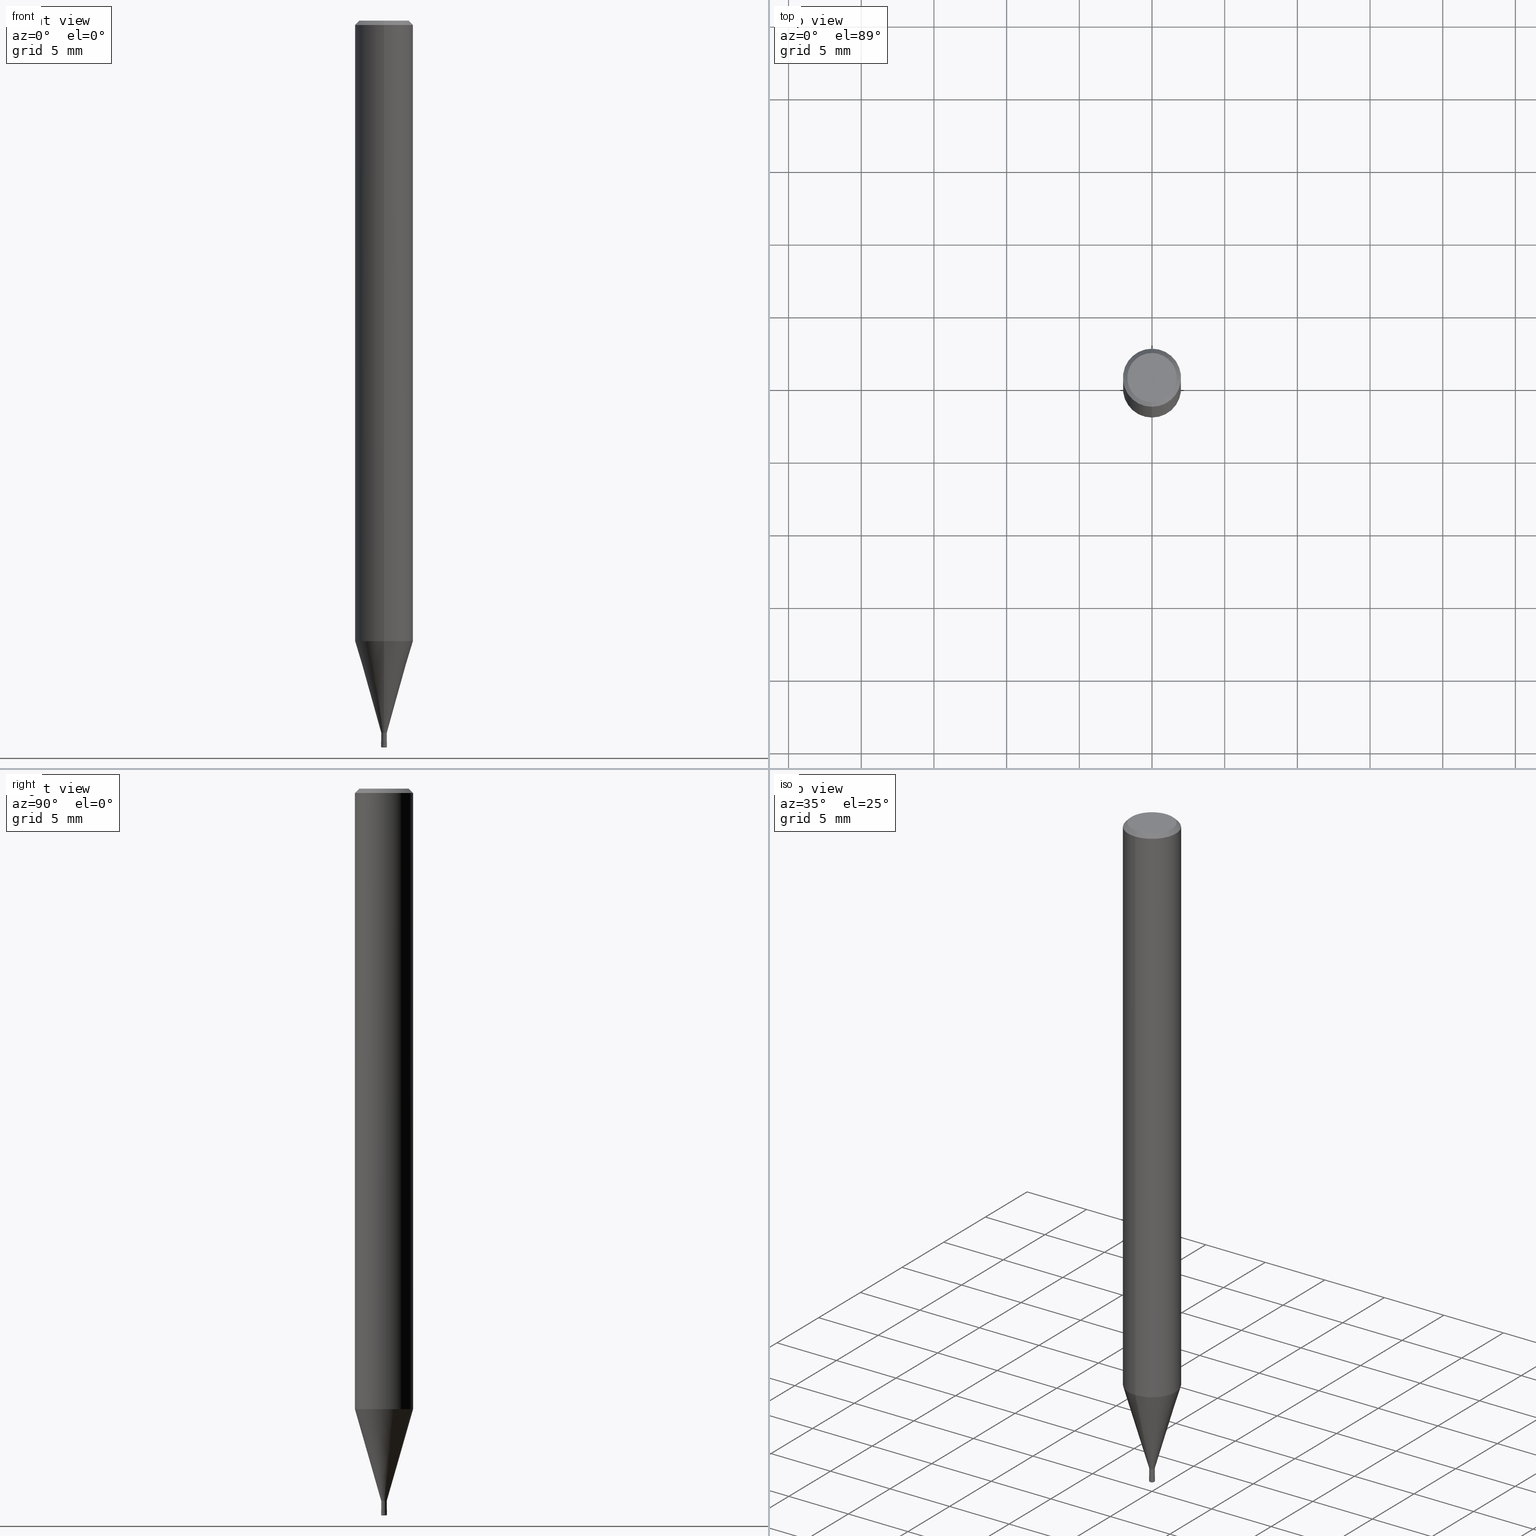
[diagram: canonical four-view strip — front | top / right | iso, engineering-drawing reading convention]
A machine part, canonical four-view strip (front | top / right | iso — engineering-drawing reading convention). The complete STEP part file that produces these views, byte-faithful:
ISO-10303-21;
HEADER;
FILE_DESCRIPTION(('no description'),'unknown implementation level');
FILE_NAME('HLRS2004-005-010E-Huellk.stp','  ',('CIMSOURCE GmbH'),('CADClick - KiM GmbH - www.kimweb.de'),'unknown preprocess','ACIS','unknown authorization');
FILE_SCHEMA(('automotive_design'));
ENDSEC;
DATA;
#1=MECHANICAL_DESIGN_GEOMETRIC_PRESENTATION_REPRESENTATION(' ',(#14,#15,#16,#17,#18,#19,#20,#21,#22,#23,#24,#25,#26,#27,#28,#29,#30,#31,#32,#33,#34,#35,#36,#37,#38,#39,#40,#41,#42,#43,#44,#45,#46,#47,#48,#49,#50,#51,#52,#53,#54,#55,#56,#57,#58,#59,#60,#61,#62,#63,#64,#65,#66,#67,#68,#69,#70,#71,#72,#73,#74,#75,#76,#77,#78,#79,#80),#10);
#2=PRODUCT_DEFINITION_CONTEXT('',#81,'design');
#3=APPLICATION_PROTOCOL_DEFINITION('INTERNATIONAL STANDARD','automotive_design',1994,#81);
#4=PRODUCT_CATEGORY_RELATIONSHIP('NONE','NONE',#82,#83);
#5=SHAPE_DEFINITION_REPRESENTATION(#84,#85);
#6=PRODUCT_DEFINITION_CONTEXT('',#86,'design');
#7=APPLICATION_PROTOCOL_DEFINITION('INTERNATIONAL STANDARD','automotive_design',1994,#86);
#8=PRODUCT_CATEGORY_RELATIONSHIP('NONE','NONE',#87,#88);
#9=SHAPE_DEFINITION_REPRESENTATION(#89,#90);
#10= (GEOMETRIC_REPRESENTATION_CONTEXT(3)GLOBAL_UNCERTAINTY_ASSIGNED_CONTEXT((#93))GLOBAL_UNIT_ASSIGNED_CONTEXT((#95,#96,#97))REPRESENTATION_CONTEXT('NONE','WORKSPACE'));
#14=STYLED_ITEM('',(#99),#100);
#15=STYLED_ITEM('',(#101),#102);
#16=STYLED_ITEM('',(#103),#104);
#17=STYLED_ITEM('',(#105),#106);
#18=STYLED_ITEM('',(#107),#108);
#19=STYLED_ITEM('',(#109),#110);
#20=STYLED_ITEM('',(#111),#112);
#21=STYLED_ITEM('',(#113),#114);
#22=STYLED_ITEM('',(#115),#116);
#23=STYLED_ITEM('',(#117),#118);
#24=STYLED_ITEM('',(#119),#120);
#25=STYLED_ITEM('',(#121),#122);
#26=STYLED_ITEM('',(#123),#124);
#27=STYLED_ITEM('',(#125),#126);
#28=STYLED_ITEM('',(#127),#128);
#29=STYLED_ITEM('',(#129),#130);
#30=STYLED_ITEM('',(#131),#132);
#31=STYLED_ITEM('',(#133),#134);
#32=STYLED_ITEM('',(#135),#136);
#33=STYLED_ITEM('',(#137),#138);
#34=STYLED_ITEM('',(#139),#140);
#35=STYLED_ITEM('',(#141),#142);
#36=STYLED_ITEM('',(#143),#144);
#37=STYLED_ITEM('',(#145),#146);
#38=STYLED_ITEM('',(#147),#148);
#39=STYLED_ITEM('',(#149),#150);
#40=STYLED_ITEM('',(#151),#152);
#41=STYLED_ITEM('',(#153),#154);
#42=STYLED_ITEM('',(#155),#156);
#43=STYLED_ITEM('',(#157),#158);
#44=STYLED_ITEM('',(#159),#160);
#45=STYLED_ITEM('',(#161),#162);
#46=STYLED_ITEM('',(#163),#164);
#47=STYLED_ITEM('',(#165),#166);
#48=STYLED_ITEM('',(#167),#168);
#49=STYLED_ITEM('',(#169),#170);
#50=STYLED_ITEM('',(#171),#172);
#51=STYLED_ITEM('',(#173),#174);
#52=STYLED_ITEM('',(#175),#176);
#53=STYLED_ITEM('',(#177),#178);
#54=STYLED_ITEM('',(#179),#180);
#55=STYLED_ITEM('',(#181),#182);
#56=STYLED_ITEM('',(#183),#184);
#57=STYLED_ITEM('',(#185),#186);
#58=STYLED_ITEM('',(#187),#188);
#59=STYLED_ITEM('',(#189),#190);
#60=STYLED_ITEM('',(#191),#192);
#61=STYLED_ITEM('',(#193),#194);
#62=STYLED_ITEM('',(#195),#196);
#63=STYLED_ITEM('',(#197),#198);
#64=STYLED_ITEM('',(#199),#200);
#65=STYLED_ITEM('',(#201),#202);
#66=STYLED_ITEM('',(#203),#204);
#67=STYLED_ITEM('',(#205),#206);
#68=STYLED_ITEM('',(#207),#208);
#69=STYLED_ITEM('',(#209),#210);
#70=STYLED_ITEM('',(#211),#212);
#71=STYLED_ITEM('',(#213),#214);
#72=STYLED_ITEM('',(#215),#216);
#73=STYLED_ITEM('',(#217),#218);
#74=STYLED_ITEM('',(#219),#220);
#75=STYLED_ITEM('',(#221),#222);
#76=STYLED_ITEM('',(#223),#224);
#77=STYLED_ITEM('',(#225),#226);
#78=STYLED_ITEM('',(#227),#228);
#79=STYLED_ITEM('',(#229),#230);
#80=STYLED_ITEM('',(#231),#232);
#81=APPLICATION_CONTEXT(' ');
#82=PRODUCT_CATEGORY('part','NONE');
#83=PRODUCT_RELATED_PRODUCT_CATEGORY('detail',' ',(#233));
#84=PRODUCT_DEFINITION_SHAPE('NONE','NONE',#234);
#85=ADVANCED_BREP_SHAPE_REPRESENTATION('1',(#212,#235),#10);
#86=APPLICATION_CONTEXT(' ');
#87=PRODUCT_CATEGORY('part','NONE');
#88=PRODUCT_RELATED_PRODUCT_CATEGORY('detail',' ',(#236));
#89=PRODUCT_DEFINITION_SHAPE('NONE','NONE',#237);
#90=ADVANCED_BREP_SHAPE_REPRESENTATION('2',(#204,#238),#10);
#93=UNCERTAINTY_MEASURE_WITH_UNIT(LENGTH_MEASURE(1.0E-006),#95,'','');
#95= (CONVERSION_BASED_UNIT('MILLIMETRE',#241)LENGTH_UNIT()NAMED_UNIT(#244));
#96= (NAMED_UNIT(#246)PLANE_ANGLE_UNIT()SI_UNIT($,.RADIAN.));
#97= (NAMED_UNIT(#246)SOLID_ANGLE_UNIT()SI_UNIT($,.STERADIAN.));
#99=PRESENTATION_STYLE_ASSIGNMENT((#252));
#100=VERTEX_POINT('',#253);
#101=PRESENTATION_STYLE_ASSIGNMENT((#254));
#102=VERTEX_POINT('',#255);
#103=PRESENTATION_STYLE_ASSIGNMENT((#256));
#104=EDGE_CURVE('',#138,#226,#257,.T.);
#105=PRESENTATION_STYLE_ASSIGNMENT((#258));
#106=VERTEX_POINT('',#259);
#107=PRESENTATION_STYLE_ASSIGNMENT((#260));
#108=VERTEX_POINT('',#261);
#109=PRESENTATION_STYLE_ASSIGNMENT((#262));
#110=VERTEX_POINT('',#263);
#111=PRESENTATION_STYLE_ASSIGNMENT((#264));
#112=EDGE_CURVE('',#108,#100,#265,.T.);
#113=PRESENTATION_STYLE_ASSIGNMENT((#266));
#114=ADVANCED_FACE('',(#267),#268,.T.);
#115=PRESENTATION_STYLE_ASSIGNMENT((#269));
#116=ADVANCED_FACE('',(#270),#271,.T.);
#117=PRESENTATION_STYLE_ASSIGNMENT((#272));
#118=EDGE_CURVE('',#178,#206,#273,.T.);
#119=PRESENTATION_STYLE_ASSIGNMENT((#274));
#120=EDGE_CURVE('',#128,#146,#275,.T.);
#121=PRESENTATION_STYLE_ASSIGNMENT((#276));
#122=EDGE_CURVE('',#226,#146,#277,.T.);
#123=PRESENTATION_STYLE_ASSIGNMENT((#278));
#124=ADVANCED_FACE('',(#279),#280,.T.);
#125=PRESENTATION_STYLE_ASSIGNMENT((#281));
#126=ADVANCED_FACE('',(#282),#283,.T.);
#127=PRESENTATION_STYLE_ASSIGNMENT((#284));
#128=VERTEX_POINT('',#285);
#129=PRESENTATION_STYLE_ASSIGNMENT((#286));
#130=VERTEX_POINT('',#287);
#131=PRESENTATION_STYLE_ASSIGNMENT((#288));
#132=ADVANCED_FACE('',(#289),#290,.T.);
#133=PRESENTATION_STYLE_ASSIGNMENT((#291));
#134=ADVANCED_FACE('',(#292),#293,.T.);
#135=PRESENTATION_STYLE_ASSIGNMENT((#294));
#136=EDGE_CURVE('',#206,#178,#295,.T.);
#137=PRESENTATION_STYLE_ASSIGNMENT((#296));
#138=VERTEX_POINT('',#297);
#139=PRESENTATION_STYLE_ASSIGNMENT((#298));
#140=EDGE_CURVE('',#100,#194,#299,.T.);
#141=PRESENTATION_STYLE_ASSIGNMENT((#300));
#142=ADVANCED_FACE('',(#301),#302,.T.);
#143=PRESENTATION_STYLE_ASSIGNMENT((#303));
#144=EDGE_CURVE('',#130,#100,#304,.T.);
#145=PRESENTATION_STYLE_ASSIGNMENT((#305));
#146=VERTEX_POINT('',#306);
#147=PRESENTATION_STYLE_ASSIGNMENT((#307));
#148=EDGE_CURVE('',#100,#108,#308,.T.);
#149=PRESENTATION_STYLE_ASSIGNMENT((#309));
#150=EDGE_CURVE('',#138,#192,#310,.T.);
#151=PRESENTATION_STYLE_ASSIGNMENT((#311));
#152=VERTEX_POINT('',#312);
#153=PRESENTATION_STYLE_ASSIGNMENT((#313));
#154=EDGE_CURVE('',#152,#106,#314,.T.);
#155=PRESENTATION_STYLE_ASSIGNMENT((#315));
#156=EDGE_CURVE('',#128,#190,#316,.T.);
#157=PRESENTATION_STYLE_ASSIGNMENT((#317));
#158=ADVANCED_FACE('',(#318),#319,.T.);
#159=PRESENTATION_STYLE_ASSIGNMENT((#320));
#160=EDGE_CURVE('',#110,#176,#321,.T.);
#161=PRESENTATION_STYLE_ASSIGNMENT((#322));
#162=ADVANCED_FACE('',(#323),#324,.T.);
#163=PRESENTATION_STYLE_ASSIGNMENT((#325));
#164=EDGE_CURVE('',#130,#102,#326,.T.);
#165=PRESENTATION_STYLE_ASSIGNMENT((#327));
#166=EDGE_CURVE('',#110,#106,#328,.T.);
#167=PRESENTATION_STYLE_ASSIGNMENT((#329));
#168=EDGE_CURVE('',#108,#102,#330,.T.);
#169=PRESENTATION_STYLE_ASSIGNMENT((#331));
#170=ADVANCED_FACE('',(#332),#333,.T.);
#171=PRESENTATION_STYLE_ASSIGNMENT((#334));
#172=ADVANCED_FACE('',(#335),#336,.T.);
#173=PRESENTATION_STYLE_ASSIGNMENT((#337));
#174=EDGE_CURVE('',#176,#110,#338,.T.);
#175=PRESENTATION_STYLE_ASSIGNMENT((#339));
#176=VERTEX_POINT('',#340);
#177=PRESENTATION_STYLE_ASSIGNMENT((#341));
#178=VERTEX_POINT('',#342);
#179=PRESENTATION_STYLE_ASSIGNMENT((#343));
#180=EDGE_CURVE('',#194,#216,#344,.T.);
#181=PRESENTATION_STYLE_ASSIGNMENT((#345));
#182=ADVANCED_FACE('',(#346,#347),#348,.T.);
#183=PRESENTATION_STYLE_ASSIGNMENT((#349));
#184=EDGE_CURVE('',#206,#106,#350,.T.);
#185=PRESENTATION_STYLE_ASSIGNMENT((#351));
#186=EDGE_CURVE('',#190,#192,#352,.T.);
#187=PRESENTATION_STYLE_ASSIGNMENT((#353));
#188=ADVANCED_FACE('',(#354),#355,.T.);
#189=PRESENTATION_STYLE_ASSIGNMENT((#356));
#190=VERTEX_POINT('',#357);
#191=PRESENTATION_STYLE_ASSIGNMENT((#358));
#192=VERTEX_POINT('',#359);
#193=PRESENTATION_STYLE_ASSIGNMENT((#360));
#194=VERTEX_POINT('',#361);
#195=PRESENTATION_STYLE_ASSIGNMENT((#362));
#196=EDGE_CURVE('',#102,#130,#363,.T.);
#197=PRESENTATION_STYLE_ASSIGNMENT((#364));
#198=ADVANCED_FACE('',(#365),#366,.T.);
#199=PRESENTATION_STYLE_ASSIGNMENT((#367));
#200=EDGE_CURVE('',#152,#178,#368,.T.);
#201=PRESENTATION_STYLE_ASSIGNMENT((#369));
#202=EDGE_CURVE('',#226,#190,#370,.T.);
#203=PRESENTATION_STYLE_ASSIGNMENT((#371));
#204=MANIFOLD_SOLID_BREP('2',#372);
#205=PRESENTATION_STYLE_ASSIGNMENT((#373));
#206=VERTEX_POINT('',#374);
#207=PRESENTATION_STYLE_ASSIGNMENT((#375));
#208=EDGE_CURVE('',#106,#152,#376,.T.);
#209=PRESENTATION_STYLE_ASSIGNMENT((#377));
#210=ADVANCED_FACE('',(#378),#379,.T.);
#211=PRESENTATION_STYLE_ASSIGNMENT((#380));
#212=MANIFOLD_SOLID_BREP('1',#381);
#213=PRESENTATION_STYLE_ASSIGNMENT((#382));
#214=EDGE_CURVE('',#216,#194,#383,.T.);
#215=PRESENTATION_STYLE_ASSIGNMENT((#384));
#216=VERTEX_POINT('',#385);
#217=PRESENTATION_STYLE_ASSIGNMENT((#386));
#218=ADVANCED_FACE('',(#387),#388,.T.);
#219=PRESENTATION_STYLE_ASSIGNMENT((#389));
#220=EDGE_CURVE('',#152,#176,#390,.T.);
#221=PRESENTATION_STYLE_ASSIGNMENT((#391));
#222=ADVANCED_FACE('',(#392),#393,.T.);
#223=PRESENTATION_STYLE_ASSIGNMENT((#394));
#224=EDGE_CURVE('',#190,#226,#395,.T.);
#225=PRESENTATION_STYLE_ASSIGNMENT((#396));
#226=VERTEX_POINT('',#397);
#227=PRESENTATION_STYLE_ASSIGNMENT((#398));
#228=EDGE_CURVE('',#216,#108,#399,.T.);
#229=PRESENTATION_STYLE_ASSIGNMENT((#400));
#230=EDGE_CURVE('',#192,#138,#401,.T.);
#231=PRESENTATION_STYLE_ASSIGNMENT((#402));
#232=EDGE_CURVE('',#146,#128,#403,.T.);
#233=PRODUCT('1','1','PART-1-DESC',(#404));
#234=PRODUCT_DEFINITION('NONE','NONE',#405,#2);
#235=AXIS2_PLACEMENT_3D('',#406,#407,#408);
#236=PRODUCT('2','2','PART-2-DESC',(#409));
#237=PRODUCT_DEFINITION('NONE','NONE',#410,#6);
#238=AXIS2_PLACEMENT_3D('',#411,#412,#413);
#241=LENGTH_MEASURE_WITH_UNIT(LENGTH_MEASURE(1.0),#414);
#244=DIMENSIONAL_EXPONENTS(1.0,0.0,0.0,0.0,0.0,0.0,0.0);
#246=DIMENSIONAL_EXPONENTS(0.0,0.0,0.0,0.0,0.0,0.0,0.0);
#252=POINT_STYLE(' ',#415,POSITIVE_LENGTH_MEASURE(1.0E-006),#416);
#253=CARTESIAN_POINT('',(0.0,2.0,-0.299999999999997));
#254=POINT_STYLE(' ',#417,POSITIVE_LENGTH_MEASURE(1.0E-006),#418);
#255=CARTESIAN_POINT('',(2.08183080149804E-016,-1.7,0.0));
#256=CURVE_STYLE('',#419,POSITIVE_LENGTH_MEASURE(1.0E-006),#420);
#257=LINE('',#421,#422);
#258=POINT_STYLE(' ',#423,POSITIVE_LENGTH_MEASURE(1.0E-006),#424);
#259=CARTESIAN_POINT('',(0.0,0.2,-49.95));
#260=POINT_STYLE(' ',#425,POSITIVE_LENGTH_MEASURE(1.0E-006),#426);
#261=CARTESIAN_POINT('',(2.44921270764475E-016,-2.0,-0.299999999999997));
#262=POINT_STYLE(' ',#427,POSITIVE_LENGTH_MEASURE(1.0E-006),#428);
#263=CARTESIAN_POINT('',(0.0,0.15,-50.0));
#264=CURVE_STYLE('',#429,POSITIVE_LENGTH_MEASURE(1.0E-006),#430);
#265=CIRCLE('',#431,2.0);
#266=SURFACE_STYLE_USAGE(.BOTH.,#432);
#267=FACE_OUTER_BOUND('',#433,.T.);
#268=CYLINDRICAL_SURFACE('',#434,2.0);
#269=SURFACE_STYLE_USAGE(.BOTH.,#435);
#270=FACE_OUTER_BOUND('',#436,.T.);
#271=CONICAL_SURFACE('',#437,1.09495,0.279261921280279);
#272=CURVE_STYLE('',#438,POSITIVE_LENGTH_MEASURE(1.0E-006),#439);
#273=CIRCLE('',#440,0.1999);
#274=CURVE_STYLE('',#441,POSITIVE_LENGTH_MEASURE(1.0E-006),#442);
#275=CIRCLE('',#443,0.18995);
#276=CURVE_STYLE('',#444,POSITIVE_LENGTH_MEASURE(1.0E-006),#445);
#277=LINE('',#446,#447);
#278=SURFACE_STYLE_USAGE(.BOTH.,#448);
#279=FACE_OUTER_BOUND('',#449,.T.);
#280=PLANE('',#450);
#281=SURFACE_STYLE_USAGE(.BOTH.,#451);
#282=FACE_OUTER_BOUND('',#452,.T.);
#283=PLANE('',#453);
#284=POINT_STYLE(' ',#454,POSITIVE_LENGTH_MEASURE(1.0E-006),#455);
#285=CARTESIAN_POINT('',(2.32613976908561E-017,-0.18995,-49.6));
#286=POINT_STYLE(' ',#456,POSITIVE_LENGTH_MEASURE(1.0E-006),#457);
#287=CARTESIAN_POINT('',(0.0,1.7,0.0));
#288=SURFACE_STYLE_USAGE(.BOTH.,#458);
#289=FACE_OUTER_BOUND('',#459,.T.);
#290=CYLINDRICAL_SURFACE('',#460,0.18995);
#291=SURFACE_STYLE_USAGE(.BOTH.,#461);
#292=FACE_OUTER_BOUND('',#462,.T.);
#293=CONICAL_SURFACE('',#463,1.85,0.785398163397453);
#294=CURVE_STYLE('',#464,POSITIVE_LENGTH_MEASURE(1.0E-006),#465);
#295=CIRCLE('',#466,0.1999);
#296=POINT_STYLE(' ',#467,POSITIVE_LENGTH_MEASURE(1.0E-006),#468);
#297=CARTESIAN_POINT('',(0.0,1.99995,-42.688));
#298=CURVE_STYLE('',#469,POSITIVE_LENGTH_MEASURE(1.0E-006),#470);
#299=LINE('',#471,#472);
#300=SURFACE_STYLE_USAGE(.BOTH.,#473);
#301=FACE_OUTER_BOUND('',#474,.T.);
#302=CONICAL_SURFACE('',#475,1.09495,0.279261921280279);
#303=CURVE_STYLE('',#476,POSITIVE_LENGTH_MEASURE(1.0E-006),#477);
#304=LINE('',#478,#479);
#305=POINT_STYLE(' ',#480,POSITIVE_LENGTH_MEASURE(1.0E-006),#481);
#306=CARTESIAN_POINT('',(0.0,0.18995,-49.6));
#307=CURVE_STYLE('',#482,POSITIVE_LENGTH_MEASURE(1.0E-006),#483);
#308=CIRCLE('',#484,2.0);
#309=CURVE_STYLE('',#485,POSITIVE_LENGTH_MEASURE(1.0E-006),#486);
#310=CIRCLE('',#487,1.99995);
#311=POINT_STYLE(' ',#488,POSITIVE_LENGTH_MEASURE(1.0E-006),#489);
#312=CARTESIAN_POINT('',(2.44921270764475E-017,-0.2,-49.95));
#313=CURVE_STYLE('',#490,POSITIVE_LENGTH_MEASURE(1.0E-006),#491);
#314=CIRCLE('',#492,0.2);
#315=CURVE_STYLE('',#493,POSITIVE_LENGTH_MEASURE(1.0E-006),#494);
#316=LINE('',#495,#496);
#317=SURFACE_STYLE_USAGE(.BOTH.,#497);
#318=FACE_OUTER_BOUND('',#498,.T.);
#319=CONICAL_SURFACE('',#499,0.19995,0.000285714277939796);
#320=CURVE_STYLE('',#500,POSITIVE_LENGTH_MEASURE(1.0E-006),#501);
#321=CIRCLE('',#502,0.15);
#322=SURFACE_STYLE_USAGE(.BOTH.,#503);
#323=FACE_OUTER_BOUND('',#504,.T.);
#324=PLANE('',#505);
#325=CURVE_STYLE('',#506,POSITIVE_LENGTH_MEASURE(1.0E-006),#507);
#326=CIRCLE('',#508,1.7);
#327=CURVE_STYLE('',#509,POSITIVE_LENGTH_MEASURE(1.0E-006),#510);
#328=CIRCLE('',#511,0.0499999999999998);
#329=CURVE_STYLE('',#512,POSITIVE_LENGTH_MEASURE(1.0E-006),#513);
#330=LINE('',#514,#515);
#331=SURFACE_STYLE_USAGE(.BOTH.,#516);
#332=FACE_OUTER_BOUND('',#517,.T.);
#333=TOROIDAL_SURFACE('',#518,0.15,0.0499999999999998);
#334=SURFACE_STYLE_USAGE(.BOTH.,#519);
#335=FACE_OUTER_BOUND('',#520,.T.);
#336=CYLINDRICAL_SURFACE('',#521,0.18995);
#337=CURVE_STYLE('',#522,POSITIVE_LENGTH_MEASURE(1.0E-006),#523);
#338=CIRCLE('',#524,0.15);
#339=POINT_STYLE(' ',#525,POSITIVE_LENGTH_MEASURE(1.0E-006),#526);
#340=CARTESIAN_POINT('',(1.83690953073357E-017,-0.15,-50.0));
#341=POINT_STYLE(' ',#527,POSITIVE_LENGTH_MEASURE(1.0E-006),#528);
#342=CARTESIAN_POINT('',(2.44798810129093E-017,-0.1999,-49.6));
#343=CURVE_STYLE('',#529,POSITIVE_LENGTH_MEASURE(1.0E-006),#530);
#344=CIRCLE('',#531,2.0);
#345=SURFACE_STYLE_USAGE(.BOTH.,#532);
#346=FACE_OUTER_BOUND('',#533,.T.);
#347=FACE_BOUND('',#534,.T.);
#348=PLANE('',#535);
#349=CURVE_STYLE('',#536,POSITIVE_LENGTH_MEASURE(1.0E-006),#537);
#350=LINE('',#538,#539);
#351=CURVE_STYLE('',#540,POSITIVE_LENGTH_MEASURE(1.0E-006),#541);
#352=LINE('',#542,#543);
#353=SURFACE_STYLE_USAGE(.BOTH.,#544);
#354=FACE_OUTER_BOUND('',#545,.T.);
#355=CONICAL_SURFACE('',#546,1.85,0.785398163397453);
#356=POINT_STYLE(' ',#547,POSITIVE_LENGTH_MEASURE(1.0E-006),#548);
#357=CARTESIAN_POINT('',(2.3261397690856E-017,-0.18995,-49.0));
#358=POINT_STYLE(' ',#549,POSITIVE_LENGTH_MEASURE(1.0E-006),#550);
#359=CARTESIAN_POINT('',(2.44915147732706E-016,-1.99995,-42.688));
#360=POINT_STYLE(' ',#551,POSITIVE_LENGTH_MEASURE(1.0E-006),#552);
#361=CARTESIAN_POINT('',(0.0,2.0,-42.688));
#362=CURVE_STYLE('',#553,POSITIVE_LENGTH_MEASURE(1.0E-006),#554);
#363=CIRCLE('',#555,1.7);
#364=SURFACE_STYLE_USAGE(.BOTH.,#556);
#365=FACE_OUTER_BOUND('',#557,.T.);
#366=PLANE('',#558);
#367=CURVE_STYLE('',#559,POSITIVE_LENGTH_MEASURE(1.0E-006),#560);
#368=LINE('',#561,#562);
#369=CURVE_STYLE('',#563,POSITIVE_LENGTH_MEASURE(1.0E-006),#564);
#370=CIRCLE('',#565,0.18995);
#371=SURFACE_STYLE_USAGE(.BOTH.,#566);
#372=CLOSED_SHELL('',(#222,#158,#162,#210,#170,#124));
#373=POINT_STYLE(' ',#567,POSITIVE_LENGTH_MEASURE(1.0E-006),#568);
#374=CARTESIAN_POINT('',(0.0,0.1999,-49.6));
#375=CURVE_STYLE('',#569,POSITIVE_LENGTH_MEASURE(1.0E-006),#570);
#376=CIRCLE('',#571,0.2);
#377=SURFACE_STYLE_USAGE(.BOTH.,#572);
#378=FACE_OUTER_BOUND('',#573,.T.);
#379=CONICAL_SURFACE('',#574,0.19995,0.000285714277939796);
#380=SURFACE_STYLE_USAGE(.BOTH.,#575);
#381=CLOSED_SHELL('',(#172,#116,#114,#134,#182,#198,#188,#218,#142,#132,#126));
#382=CURVE_STYLE('',#576,POSITIVE_LENGTH_MEASURE(1.0E-006),#577);
#383=CIRCLE('',#578,2.0);
#384=POINT_STYLE(' ',#579,POSITIVE_LENGTH_MEASURE(1.0E-006),#580);
#385=CARTESIAN_POINT('',(2.44921270764475E-016,-2.0,-42.688));
#386=SURFACE_STYLE_USAGE(.BOTH.,#581);
#387=FACE_OUTER_BOUND('',#582,.T.);
#388=CYLINDRICAL_SURFACE('',#583,2.0);
#389=CURVE_STYLE('',#584,POSITIVE_LENGTH_MEASURE(1.0E-006),#585);
#390=CIRCLE('',#586,0.0499999999999998);
#391=SURFACE_STYLE_USAGE(.BOTH.,#587);
#392=FACE_OUTER_BOUND('',#588,.T.);
#393=TOROIDAL_SURFACE('',#589,0.15,0.0499999999999998);
#394=CURVE_STYLE('',#590,POSITIVE_LENGTH_MEASURE(1.0E-006),#591);
#395=CIRCLE('',#592,0.18995);
#396=POINT_STYLE(' ',#593,POSITIVE_LENGTH_MEASURE(1.0E-006),#594);
#397=CARTESIAN_POINT('',(0.0,0.18995,-49.0));
#398=CURVE_STYLE('',#595,POSITIVE_LENGTH_MEASURE(1.0E-006),#596);
#399=LINE('',#597,#598);
#400=CURVE_STYLE('',#599,POSITIVE_LENGTH_MEASURE(1.0E-006),#600);
#401=CIRCLE('',#601,1.99995);
#402=CURVE_STYLE('',#602,POSITIVE_LENGTH_MEASURE(1.0E-006),#603);
#403=CIRCLE('',#604,0.18995);
#404=PRODUCT_CONTEXT('',#81,'mechanical');
#405=PRODUCT_DEFINITION_FORMATION_WITH_SPECIFIED_SOURCE(' ','NONE',#233,.NOT_KNOWN.);
#406=CARTESIAN_POINT('',(0.0,0.0,0.0));
#407=DIRECTION('',(0.0,0.0,1.0));
#408=DIRECTION('',(1.0,0.0,0.0));
#409=PRODUCT_CONTEXT('',#86,'mechanical');
#410=PRODUCT_DEFINITION_FORMATION_WITH_SPECIFIED_SOURCE(' ','NONE',#236,.NOT_KNOWN.);
#411=CARTESIAN_POINT('',(0.0,0.0,0.0));
#412=DIRECTION('',(0.0,0.0,1.0));
#413=DIRECTION('',(1.0,0.0,0.0));
#414= (NAMED_UNIT(#244)LENGTH_UNIT()SI_UNIT(.MILLI.,.METRE.));
#415=PRE_DEFINED_MARKER('');
#416=COLOUR_RGB('',0.498039215803146,0.498039215803146,0.498039215803146);
#417=PRE_DEFINED_MARKER('');
#418=COLOUR_RGB('',0.498039215803146,0.498039215803146,0.498039215803146);
#419=DRAUGHTING_PRE_DEFINED_CURVE_FONT('continuous');
#420=COLOUR_RGB('',0.498039215803146,0.498039215803146,0.498039215803146);
#421=CARTESIAN_POINT('',(-1.34088272711781E-016,1.09495,-45.844));
#422=VECTOR('',#606,1.0);
#423=PRE_DEFINED_MARKER('');
#424=COLOUR_RGB('',0.800000011920929,0.800000011920929,0.800000011920929);
#425=PRE_DEFINED_MARKER('');
#426=COLOUR_RGB('',0.498039215803146,0.498039215803146,0.498039215803146);
#427=PRE_DEFINED_MARKER('');
#428=COLOUR_RGB('',0.800000011920929,0.800000011920929,0.800000011920929);
#429=DRAUGHTING_PRE_DEFINED_CURVE_FONT('continuous');
#430=COLOUR_RGB('',0.498039215803146,0.498039215803146,0.498039215803146);
#431=AXIS2_PLACEMENT_3D('',#607,#608,#609);
#432=SURFACE_SIDE_STYLE('',(#610));
#433=EDGE_LOOP('',(#611,#612,#613,#614));
#434=AXIS2_PLACEMENT_3D('',#615,#616,#617);
#435=SURFACE_SIDE_STYLE('',(#618));
#436=EDGE_LOOP('',(#619,#620,#621,#622));
#437=AXIS2_PLACEMENT_3D('',#623,#624,#625);
#438=DRAUGHTING_PRE_DEFINED_CURVE_FONT('continuous');
#439=COLOUR_RGB('',0.800000011920929,0.800000011920929,0.800000011920929);
#440=AXIS2_PLACEMENT_3D('',#626,#627,#628);
#441=DRAUGHTING_PRE_DEFINED_CURVE_FONT('continuous');
#442=COLOUR_RGB('',0.498039215803146,0.498039215803146,0.498039215803146);
#443=AXIS2_PLACEMENT_3D('',#629,#630,#631);
#444=DRAUGHTING_PRE_DEFINED_CURVE_FONT('continuous');
#445=COLOUR_RGB('',0.498039215803146,0.498039215803146,0.498039215803146);
#446=CARTESIAN_POINT('',(-2.32613976908561E-017,0.18995,-49.3));
#447=VECTOR('',#632,1.0);
#448=SURFACE_SIDE_STYLE('',(#633));
#449=EDGE_LOOP('',(#634,#635));
#450=AXIS2_PLACEMENT_3D('',#636,#637,#638);
#451=SURFACE_SIDE_STYLE('',(#639));
#452=EDGE_LOOP('',(#640,#641));
#453=AXIS2_PLACEMENT_3D('',#642,#643,#644);
#454=PRE_DEFINED_MARKER('');
#455=COLOUR_RGB('',0.498039215803146,0.498039215803146,0.498039215803146);
#456=PRE_DEFINED_MARKER('');
#457=COLOUR_RGB('',0.498039215803146,0.498039215803146,0.498039215803146);
#458=SURFACE_SIDE_STYLE('',(#645));
#459=EDGE_LOOP('',(#646,#647,#648,#649));
#460=AXIS2_PLACEMENT_3D('',#650,#651,#652);
#461=SURFACE_SIDE_STYLE('',(#653));
#462=EDGE_LOOP('',(#654,#655,#656,#657));
#463=AXIS2_PLACEMENT_3D('',#658,#659,#660);
#464=DRAUGHTING_PRE_DEFINED_CURVE_FONT('continuous');
#465=COLOUR_RGB('',0.800000011920929,0.800000011920929,0.800000011920929);
#466=AXIS2_PLACEMENT_3D('',#661,#662,#663);
#467=PRE_DEFINED_MARKER('');
#468=COLOUR_RGB('',0.498039215803146,0.498039215803146,0.498039215803146);
#469=DRAUGHTING_PRE_DEFINED_CURVE_FONT('continuous');
#470=COLOUR_RGB('',0.498039215803146,0.498039215803146,0.498039215803146);
#471=CARTESIAN_POINT('',(-2.44921270764475E-016,2.0,-21.494));
#472=VECTOR('',#664,1.0);
#473=SURFACE_SIDE_STYLE('',(#665));
#474=EDGE_LOOP('',(#666,#667,#668,#669));
#475=AXIS2_PLACEMENT_3D('',#670,#671,#672);
#476=DRAUGHTING_PRE_DEFINED_CURVE_FONT('continuous');
#477=COLOUR_RGB('',0.498039215803146,0.498039215803146,0.498039215803146);
#478=CARTESIAN_POINT('',(-2.2655217545714E-016,1.85,-0.149999999999999));
#479=VECTOR('',#673,1.0);
#480=PRE_DEFINED_MARKER('');
#481=COLOUR_RGB('',0.498039215803146,0.498039215803146,0.498039215803146);
#482=DRAUGHTING_PRE_DEFINED_CURVE_FONT('continuous');
#483=COLOUR_RGB('',0.498039215803146,0.498039215803146,0.498039215803146);
#484=AXIS2_PLACEMENT_3D('',#674,#675,#676);
#485=DRAUGHTING_PRE_DEFINED_CURVE_FONT('continuous');
#486=COLOUR_RGB('',0.498039215803146,0.498039215803146,0.498039215803146);
#487=AXIS2_PLACEMENT_3D('',#677,#678,#679);
#488=PRE_DEFINED_MARKER('');
#489=COLOUR_RGB('',0.800000011920929,0.800000011920929,0.800000011920929);
#490=DRAUGHTING_PRE_DEFINED_CURVE_FONT('continuous');
#491=COLOUR_RGB('',0.800000011920929,0.800000011920929,0.800000011920929);
#492=AXIS2_PLACEMENT_3D('',#680,#681,#682);
#493=DRAUGHTING_PRE_DEFINED_CURVE_FONT('continuous');
#494=COLOUR_RGB('',0.498039215803146,0.498039215803146,0.498039215803146);
#495=CARTESIAN_POINT('',(2.32613976908561E-017,-0.18995,-49.3));
#496=VECTOR('',#683,1.0);
#497=SURFACE_SIDE_STYLE('',(#684));
#498=EDGE_LOOP('',(#685,#686,#687,#688));
#499=AXIS2_PLACEMENT_3D('',#689,#690,#691);
#500=DRAUGHTING_PRE_DEFINED_CURVE_FONT('continuous');
#501=COLOUR_RGB('',0.800000011920929,0.800000011920929,0.800000011920929);
#502=AXIS2_PLACEMENT_3D('',#692,#693,#694);
#503=SURFACE_SIDE_STYLE('',(#695));
#504=EDGE_LOOP('',(#696,#697));
#505=AXIS2_PLACEMENT_3D('',#698,#699,#700);
#506=DRAUGHTING_PRE_DEFINED_CURVE_FONT('continuous');
#507=COLOUR_RGB('',0.498039215803146,0.498039215803146,0.498039215803146);
#508=AXIS2_PLACEMENT_3D('',#701,#702,#703);
#509=DRAUGHTING_PRE_DEFINED_CURVE_FONT('continuous');
#510=COLOUR_RGB('',0.800000011920929,0.800000011920929,0.800000011920929);
#511=AXIS2_PLACEMENT_3D('',#704,#705,#706);
#512=DRAUGHTING_PRE_DEFINED_CURVE_FONT('continuous');
#513=COLOUR_RGB('',0.498039215803146,0.498039215803146,0.498039215803146);
#514=CARTESIAN_POINT('',(2.2655217545714E-016,-1.85,-0.149999999999999));
#515=VECTOR('',#707,1.0);
#516=SURFACE_SIDE_STYLE('',(#708));
#517=EDGE_LOOP('',(#709,#710,#711,#712));
#518=AXIS2_PLACEMENT_3D('',#713,#714,#715);
#519=SURFACE_SIDE_STYLE('',(#716));
#520=EDGE_LOOP('',(#717,#718,#719,#720));
#521=AXIS2_PLACEMENT_3D('',#721,#722,#723);
#522=DRAUGHTING_PRE_DEFINED_CURVE_FONT('continuous');
#523=COLOUR_RGB('',0.800000011920929,0.800000011920929,0.800000011920929);
#524=AXIS2_PLACEMENT_3D('',#724,#725,#726);
#525=PRE_DEFINED_MARKER('');
#526=COLOUR_RGB('',0.800000011920929,0.800000011920929,0.800000011920929);
#527=PRE_DEFINED_MARKER('');
#528=COLOUR_RGB('',0.800000011920929,0.800000011920929,0.800000011920929);
#529=DRAUGHTING_PRE_DEFINED_CURVE_FONT('continuous');
#530=COLOUR_RGB('',0.498039215803146,0.498039215803146,0.498039215803146);
#531=AXIS2_PLACEMENT_3D('',#727,#728,#729);
#532=SURFACE_SIDE_STYLE('',(#730));
#533=EDGE_LOOP('',(#731,#732));
#534=EDGE_LOOP('',(#733,#734));
#535=AXIS2_PLACEMENT_3D('',#735,#736,#737);
#536=DRAUGHTING_PRE_DEFINED_CURVE_FONT('continuous');
#537=COLOUR_RGB('',0.800000011920929,0.800000011920929,0.800000011920929);
#538=CARTESIAN_POINT('',(-2.44860040446784E-017,0.19995,-49.775));
#539=VECTOR('',#738,1.0);
#540=DRAUGHTING_PRE_DEFINED_CURVE_FONT('continuous');
#541=COLOUR_RGB('',0.498039215803146,0.498039215803146,0.498039215803146);
#542=CARTESIAN_POINT('',(1.34088272711781E-016,-1.09495,-45.844));
#543=VECTOR('',#739,1.0);
#544=SURFACE_SIDE_STYLE('',(#740));
#545=EDGE_LOOP('',(#741,#742,#743,#744));
#546=AXIS2_PLACEMENT_3D('',#745,#746,#747);
#547=PRE_DEFINED_MARKER('');
#548=COLOUR_RGB('',0.498039215803146,0.498039215803146,0.498039215803146);
#549=PRE_DEFINED_MARKER('');
#550=COLOUR_RGB('',0.498039215803146,0.498039215803146,0.498039215803146);
#551=PRE_DEFINED_MARKER('');
#552=COLOUR_RGB('',0.498039215803146,0.498039215803146,0.498039215803146);
#553=DRAUGHTING_PRE_DEFINED_CURVE_FONT('continuous');
#554=COLOUR_RGB('',0.498039215803146,0.498039215803146,0.498039215803146);
#555=AXIS2_PLACEMENT_3D('',#748,#749,#750);
#556=SURFACE_SIDE_STYLE('',(#751));
#557=EDGE_LOOP('',(#752,#753));
#558=AXIS2_PLACEMENT_3D('',#754,#755,#756);
#559=DRAUGHTING_PRE_DEFINED_CURVE_FONT('continuous');
#560=COLOUR_RGB('',0.800000011920929,0.800000011920929,0.800000011920929);
#561=CARTESIAN_POINT('',(2.44860040446784E-017,-0.19995,-49.775));
#562=VECTOR('',#757,1.0);
#563=DRAUGHTING_PRE_DEFINED_CURVE_FONT('continuous');
#564=COLOUR_RGB('',0.498039215803146,0.498039215803146,0.498039215803146);
#565=AXIS2_PLACEMENT_3D('',#758,#759,#760);
#566=SURFACE_SIDE_STYLE('',(#761));
#567=PRE_DEFINED_MARKER('');
#568=COLOUR_RGB('',0.800000011920929,0.800000011920929,0.800000011920929);
#569=DRAUGHTING_PRE_DEFINED_CURVE_FONT('continuous');
#570=COLOUR_RGB('',0.800000011920929,0.800000011920929,0.800000011920929);
#571=AXIS2_PLACEMENT_3D('',#762,#763,#764);
#572=SURFACE_SIDE_STYLE('',(#765));
#573=EDGE_LOOP('',(#766,#767,#768,#769));
#574=AXIS2_PLACEMENT_3D('',#770,#771,#772);
#575=SURFACE_SIDE_STYLE('',(#773));
#576=DRAUGHTING_PRE_DEFINED_CURVE_FONT('continuous');
#577=COLOUR_RGB('',0.498039215803146,0.498039215803146,0.498039215803146);
#578=AXIS2_PLACEMENT_3D('',#774,#775,#776);
#579=PRE_DEFINED_MARKER('');
#580=COLOUR_RGB('',0.498039215803146,0.498039215803146,0.498039215803146);
#581=SURFACE_SIDE_STYLE('',(#777));
#582=EDGE_LOOP('',(#778,#779,#780,#781));
#583=AXIS2_PLACEMENT_3D('',#782,#783,#784);
#584=DRAUGHTING_PRE_DEFINED_CURVE_FONT('continuous');
#585=COLOUR_RGB('',0.800000011920929,0.800000011920929,0.800000011920929);
#586=AXIS2_PLACEMENT_3D('',#785,#786,#787);
#587=SURFACE_SIDE_STYLE('',(#788));
#588=EDGE_LOOP('',(#789,#790,#791,#792));
#589=AXIS2_PLACEMENT_3D('',#793,#794,#795);
#590=DRAUGHTING_PRE_DEFINED_CURVE_FONT('continuous');
#591=COLOUR_RGB('',0.498039215803146,0.498039215803146,0.498039215803146);
#592=AXIS2_PLACEMENT_3D('',#796,#797,#798);
#593=PRE_DEFINED_MARKER('');
#594=COLOUR_RGB('',0.498039215803146,0.498039215803146,0.498039215803146);
#595=DRAUGHTING_PRE_DEFINED_CURVE_FONT('continuous');
#596=COLOUR_RGB('',0.498039215803146,0.498039215803146,0.498039215803146);
#597=CARTESIAN_POINT('',(2.44921270764475E-016,-2.0,-21.494));
#598=VECTOR('',#799,1.0);
#599=DRAUGHTING_PRE_DEFINED_CURVE_FONT('continuous');
#600=COLOUR_RGB('',0.498039215803146,0.498039215803146,0.498039215803146);
#601=AXIS2_PLACEMENT_3D('',#800,#801,#802);
#602=DRAUGHTING_PRE_DEFINED_CURVE_FONT('continuous');
#603=COLOUR_RGB('',0.498039215803146,0.498039215803146,0.498039215803146);
#604=AXIS2_PLACEMENT_3D('',#803,#804,#805);
#606=DIRECTION('',(3.37558135426109E-017,-0.275646238787252,-0.961259148743169));
#607=CARTESIAN_POINT('',(0.0,0.0,-0.299999999999997));
#608=DIRECTION('',(0.0,0.0,-1.0));
#609=DIRECTION('',(0.0,1.0,0.0));
#610=SURFACE_STYLE_FILL_AREA(#806);
#611=ORIENTED_EDGE('',*,*,#140,.F.);
#612=ORIENTED_EDGE('',*,*,#148,.T.);
#613=ORIENTED_EDGE('',*,*,#228,.F.);
#614=ORIENTED_EDGE('',*,*,#180,.F.);
#615=CARTESIAN_POINT('',(0.0,0.0,-21.494));
#616=DIRECTION('',(-0.0,-0.0,1.0));
#617=DIRECTION('',(0.0,1.0,0.0));
#618=SURFACE_STYLE_FILL_AREA(#807);
#619=ORIENTED_EDGE('',*,*,#104,.F.);
#620=ORIENTED_EDGE('',*,*,#150,.T.);
#621=ORIENTED_EDGE('',*,*,#186,.F.);
#622=ORIENTED_EDGE('',*,*,#202,.F.);
#623=CARTESIAN_POINT('',(0.0,0.0,-45.844));
#624=DIRECTION('',(-0.0,-0.0,1.0));
#625=DIRECTION('',(0.0,1.0,0.0));
#626=CARTESIAN_POINT('',(0.0,0.0,-49.6));
#627=DIRECTION('',(0.0,0.0,-1.0));
#628=DIRECTION('',(0.0,1.0,0.0));
#629=CARTESIAN_POINT('',(0.0,0.0,-49.6));
#630=DIRECTION('',(0.0,0.0,-1.0));
#631=DIRECTION('',(0.0,1.0,0.0));
#632=DIRECTION('',(0.0,0.0,-1.0));
#633=SURFACE_STYLE_FILL_AREA(#808);
#634=ORIENTED_EDGE('',*,*,#160,.T.);
#635=ORIENTED_EDGE('',*,*,#174,.T.);
#636=CARTESIAN_POINT('',(0.0,0.075,-50.0));
#637=DIRECTION('',(0.0,0.0,-1.0));
#638=DIRECTION('',(0.0,1.0,0.0));
#639=SURFACE_STYLE_FILL_AREA(#809);
#640=ORIENTED_EDGE('',*,*,#232,.T.);
#641=ORIENTED_EDGE('',*,*,#120,.T.);
#642=CARTESIAN_POINT('',(0.0,0.094975,-49.6));
#643=DIRECTION('',(0.0,0.0,-1.0));
#644=DIRECTION('',(0.0,1.0,0.0));
#645=SURFACE_STYLE_FILL_AREA(#810);
#646=ORIENTED_EDGE('',*,*,#122,.T.);
#647=ORIENTED_EDGE('',*,*,#120,.F.);
#648=ORIENTED_EDGE('',*,*,#156,.T.);
#649=ORIENTED_EDGE('',*,*,#224,.T.);
#650=CARTESIAN_POINT('',(0.0,0.0,-49.3));
#651=DIRECTION('',(-0.0,-0.0,1.0));
#652=DIRECTION('',(0.0,1.0,0.0));
#653=SURFACE_STYLE_FILL_AREA(#811);
#654=ORIENTED_EDGE('',*,*,#144,.F.);
#655=ORIENTED_EDGE('',*,*,#164,.T.);
#656=ORIENTED_EDGE('',*,*,#168,.F.);
#657=ORIENTED_EDGE('',*,*,#148,.F.);
#658=CARTESIAN_POINT('',(0.0,0.0,-0.149999999999999));
#659=DIRECTION('',(0.0,-0.0,-1.0));
#660=DIRECTION('',(0.0,1.0,0.0));
#661=CARTESIAN_POINT('',(0.0,0.0,-49.6));
#662=DIRECTION('',(0.0,0.0,-1.0));
#663=DIRECTION('',(0.0,1.0,0.0));
#664=DIRECTION('',(0.0,0.0,-1.0));
#665=SURFACE_STYLE_FILL_AREA(#812);
#666=ORIENTED_EDGE('',*,*,#104,.T.);
#667=ORIENTED_EDGE('',*,*,#224,.F.);
#668=ORIENTED_EDGE('',*,*,#186,.T.);
#669=ORIENTED_EDGE('',*,*,#230,.T.);
#670=CARTESIAN_POINT('',(0.0,0.0,-45.844));
#671=DIRECTION('',(-0.0,-0.0,1.0));
#672=DIRECTION('',(0.0,1.0,0.0));
#673=DIRECTION('',(-8.6592745707194E-017,0.707106781186551,-0.707106781186544));
#674=CARTESIAN_POINT('',(0.0,0.0,-0.299999999999997));
#675=DIRECTION('',(0.0,0.0,-1.0));
#676=DIRECTION('',(0.0,1.0,0.0));
#677=CARTESIAN_POINT('',(0.0,0.0,-42.688));
#678=DIRECTION('',(0.0,0.0,-1.0));
#679=DIRECTION('',(0.0,1.0,0.0));
#680=CARTESIAN_POINT('',(0.0,0.0,-49.95));
#681=DIRECTION('',(0.0,0.0,-1.0));
#682=DIRECTION('',(0.0,1.0,0.0));
#683=DIRECTION('',(-0.0,-0.0,1.0));
#684=SURFACE_STYLE_FILL_AREA(#813);
#685=ORIENTED_EDGE('',*,*,#184,.F.);
#686=ORIENTED_EDGE('',*,*,#136,.T.);
#687=ORIENTED_EDGE('',*,*,#200,.F.);
#688=ORIENTED_EDGE('',*,*,#208,.F.);
#689=CARTESIAN_POINT('',(0.0,0.0,-49.775));
#690=DIRECTION('',(0.0,-0.0,-1.0));
#691=DIRECTION('',(0.0,1.0,0.0));
#692=CARTESIAN_POINT('',(0.0,0.0,-50.0));
#693=DIRECTION('',(0.0,0.0,-1.0));
#694=DIRECTION('',(0.0,1.0,0.0));
#695=SURFACE_STYLE_FILL_AREA(#814);
#696=ORIENTED_EDGE('',*,*,#136,.F.);
#697=ORIENTED_EDGE('',*,*,#118,.F.);
#698=CARTESIAN_POINT('',(0.0,0.09995,-49.6));
#699=DIRECTION('',(-0.0,0.0,1.0));
#700=DIRECTION('',(0.0,-1.0,0.0));
#701=CARTESIAN_POINT('',(0.0,0.0,0.0));
#702=DIRECTION('',(0.0,0.0,-1.0));
#703=DIRECTION('',(0.0,1.0,0.0));
#704=CARTESIAN_POINT('',(-1.83690953073357E-017,0.15,-49.95));
#705=DIRECTION('',(1.0,1.22460635382238E-016,0.0));
#706=DIRECTION('',(-1.22460635382238E-016,1.0,0.0));
#707=DIRECTION('',(-8.6592745707194E-017,0.707106781186551,0.707106781186544));
#708=SURFACE_STYLE_FILL_AREA(#815);
#709=ORIENTED_EDGE('',*,*,#220,.T.);
#710=ORIENTED_EDGE('',*,*,#160,.F.);
#711=ORIENTED_EDGE('',*,*,#166,.T.);
#712=ORIENTED_EDGE('',*,*,#208,.T.);
#713=CARTESIAN_POINT('',(0.0,0.0,-49.95));
#714=DIRECTION('',(0.0,0.0,-1.0));
#715=DIRECTION('',(0.0,-1.0,0.0));
#716=SURFACE_STYLE_FILL_AREA(#816);
#717=ORIENTED_EDGE('',*,*,#122,.F.);
#718=ORIENTED_EDGE('',*,*,#202,.T.);
#719=ORIENTED_EDGE('',*,*,#156,.F.);
#720=ORIENTED_EDGE('',*,*,#232,.F.);
#721=CARTESIAN_POINT('',(0.0,0.0,-49.3));
#722=DIRECTION('',(-0.0,-0.0,1.0));
#723=DIRECTION('',(0.0,1.0,0.0));
#724=CARTESIAN_POINT('',(0.0,0.0,-50.0));
#725=DIRECTION('',(0.0,0.0,-1.0));
#726=DIRECTION('',(0.0,1.0,0.0));
#727=CARTESIAN_POINT('',(0.0,0.0,-42.688));
#728=DIRECTION('',(0.0,0.0,-1.0));
#729=DIRECTION('',(0.0,1.0,0.0));
#730=SURFACE_STYLE_FILL_AREA(#817);
#731=ORIENTED_EDGE('',*,*,#180,.T.);
#732=ORIENTED_EDGE('',*,*,#214,.T.);
#733=ORIENTED_EDGE('',*,*,#150,.F.);
#734=ORIENTED_EDGE('',*,*,#230,.F.);
#735=CARTESIAN_POINT('',(0.0,1.0,-42.688));
#736=DIRECTION('',(0.0,0.0,-1.0));
#737=DIRECTION('',(0.0,1.0,0.0));
#738=DIRECTION('',(-3.49887515382472E-020,0.000285714274052527,-0.999999959183676));
#739=DIRECTION('',(3.37558135426109E-017,-0.275646238787252,0.961259148743169));
#740=SURFACE_STYLE_FILL_AREA(#818);
#741=ORIENTED_EDGE('',*,*,#144,.T.);
#742=ORIENTED_EDGE('',*,*,#112,.F.);
#743=ORIENTED_EDGE('',*,*,#168,.T.);
#744=ORIENTED_EDGE('',*,*,#196,.T.);
#745=CARTESIAN_POINT('',(0.0,0.0,-0.149999999999999));
#746=DIRECTION('',(0.0,-0.0,-1.0));
#747=DIRECTION('',(0.0,1.0,0.0));
#748=CARTESIAN_POINT('',(0.0,0.0,0.0));
#749=DIRECTION('',(0.0,0.0,-1.0));
#750=DIRECTION('',(0.0,1.0,0.0));
#751=SURFACE_STYLE_FILL_AREA(#819);
#752=ORIENTED_EDGE('',*,*,#164,.F.);
#753=ORIENTED_EDGE('',*,*,#196,.F.);
#754=CARTESIAN_POINT('',(0.0,0.85,0.0));
#755=DIRECTION('',(-0.0,0.0,1.0));
#756=DIRECTION('',(0.0,-1.0,0.0));
#757=DIRECTION('',(-3.49887515382472E-020,0.000285714274052527,0.999999959183676));
#758=CARTESIAN_POINT('',(0.0,0.0,-49.0));
#759=DIRECTION('',(0.0,0.0,-1.0));
#760=DIRECTION('',(0.0,1.0,0.0));
#761=SURFACE_STYLE_FILL_AREA(#820);
#762=CARTESIAN_POINT('',(0.0,0.0,-49.95));
#763=DIRECTION('',(0.0,0.0,-1.0));
#764=DIRECTION('',(0.0,1.0,0.0));
#765=SURFACE_STYLE_FILL_AREA(#821);
#766=ORIENTED_EDGE('',*,*,#184,.T.);
#767=ORIENTED_EDGE('',*,*,#154,.F.);
#768=ORIENTED_EDGE('',*,*,#200,.T.);
#769=ORIENTED_EDGE('',*,*,#118,.T.);
#770=CARTESIAN_POINT('',(0.0,0.0,-49.775));
#771=DIRECTION('',(0.0,-0.0,-1.0));
#772=DIRECTION('',(0.0,1.0,0.0));
#773=SURFACE_STYLE_FILL_AREA(#822);
#774=CARTESIAN_POINT('',(0.0,0.0,-42.688));
#775=DIRECTION('',(0.0,0.0,-1.0));
#776=DIRECTION('',(0.0,1.0,0.0));
#777=SURFACE_STYLE_FILL_AREA(#823);
#778=ORIENTED_EDGE('',*,*,#140,.T.);
#779=ORIENTED_EDGE('',*,*,#214,.F.);
#780=ORIENTED_EDGE('',*,*,#228,.T.);
#781=ORIENTED_EDGE('',*,*,#112,.T.);
#782=CARTESIAN_POINT('',(0.0,0.0,-21.494));
#783=DIRECTION('',(-0.0,-0.0,1.0));
#784=DIRECTION('',(0.0,1.0,0.0));
#785=CARTESIAN_POINT('',(1.83690953073357E-017,-0.15,-49.95));
#786=DIRECTION('',(1.0,1.22460635382238E-016,0.0));
#787=DIRECTION('',(1.22460635382238E-016,-1.0,-0.0));
#788=SURFACE_STYLE_FILL_AREA(#824);
#789=ORIENTED_EDGE('',*,*,#220,.F.);
#790=ORIENTED_EDGE('',*,*,#154,.T.);
#791=ORIENTED_EDGE('',*,*,#166,.F.);
#792=ORIENTED_EDGE('',*,*,#174,.F.);
#793=CARTESIAN_POINT('',(0.0,0.0,-49.95));
#794=DIRECTION('',(0.0,0.0,-1.0));
#795=DIRECTION('',(0.0,-1.0,0.0));
#796=CARTESIAN_POINT('',(0.0,0.0,-49.0));
#797=DIRECTION('',(0.0,0.0,-1.0));
#798=DIRECTION('',(0.0,1.0,0.0));
#799=DIRECTION('',(-0.0,-0.0,1.0));
#800=CARTESIAN_POINT('',(0.0,0.0,-42.688));
#801=DIRECTION('',(0.0,0.0,-1.0));
#802=DIRECTION('',(0.0,1.0,0.0));
#803=CARTESIAN_POINT('',(0.0,0.0,-49.6));
#804=DIRECTION('',(0.0,0.0,-1.0));
#805=DIRECTION('',(0.0,1.0,0.0));
#806=FILL_AREA_STYLE('',(#825));
#807=FILL_AREA_STYLE('',(#826));
#808=FILL_AREA_STYLE('',(#827));
#809=FILL_AREA_STYLE('',(#828));
#810=FILL_AREA_STYLE('',(#829));
#811=FILL_AREA_STYLE('',(#830));
#812=FILL_AREA_STYLE('',(#831));
#813=FILL_AREA_STYLE('',(#832));
#814=FILL_AREA_STYLE('',(#833));
#815=FILL_AREA_STYLE('',(#834));
#816=FILL_AREA_STYLE('',(#835));
#817=FILL_AREA_STYLE('',(#836));
#818=FILL_AREA_STYLE('',(#837));
#819=FILL_AREA_STYLE('',(#838));
#820=FILL_AREA_STYLE('',(#839));
#821=FILL_AREA_STYLE('',(#840));
#822=FILL_AREA_STYLE('',(#841));
#823=FILL_AREA_STYLE('',(#842));
#824=FILL_AREA_STYLE('',(#843));
#825=FILL_AREA_STYLE_COLOUR('',#844);
#826=FILL_AREA_STYLE_COLOUR('',#845);
#827=FILL_AREA_STYLE_COLOUR('',#846);
#828=FILL_AREA_STYLE_COLOUR('',#847);
#829=FILL_AREA_STYLE_COLOUR('',#848);
#830=FILL_AREA_STYLE_COLOUR('',#849);
#831=FILL_AREA_STYLE_COLOUR('',#850);
#832=FILL_AREA_STYLE_COLOUR('',#851);
#833=FILL_AREA_STYLE_COLOUR('',#852);
#834=FILL_AREA_STYLE_COLOUR('',#853);
#835=FILL_AREA_STYLE_COLOUR('',#854);
#836=FILL_AREA_STYLE_COLOUR('',#855);
#837=FILL_AREA_STYLE_COLOUR('',#856);
#838=FILL_AREA_STYLE_COLOUR('',#857);
#839=FILL_AREA_STYLE_COLOUR('',#858);
#840=FILL_AREA_STYLE_COLOUR('',#859);
#841=FILL_AREA_STYLE_COLOUR('',#860);
#842=FILL_AREA_STYLE_COLOUR('',#861);
#843=FILL_AREA_STYLE_COLOUR('',#862);
#844=COLOUR_RGB('',0.498039215803146,0.498039215803146,0.498039215803146);
#845=COLOUR_RGB('',0.498039215803146,0.498039215803146,0.498039215803146);
#846=COLOUR_RGB('',0.800000011920929,0.800000011920929,0.800000011920929);
#847=COLOUR_RGB('',0.498039215803146,0.498039215803146,0.498039215803146);
#848=COLOUR_RGB('',0.498039215803146,0.498039215803146,0.498039215803146);
#849=COLOUR_RGB('',0.498039215803146,0.498039215803146,0.498039215803146);
#850=COLOUR_RGB('',0.498039215803146,0.498039215803146,0.498039215803146);
#851=COLOUR_RGB('',0.800000011920929,0.800000011920929,0.800000011920929);
#852=COLOUR_RGB('',0.800000011920929,0.800000011920929,0.800000011920929);
#853=COLOUR_RGB('',0.800000011920929,0.800000011920929,0.800000011920929);
#854=COLOUR_RGB('',0.498039215803146,0.498039215803146,0.498039215803146);
#855=COLOUR_RGB('',0.498039215803146,0.498039215803146,0.498039215803146);
#856=COLOUR_RGB('',0.498039215803146,0.498039215803146,0.498039215803146);
#857=COLOUR_RGB('',0.498039215803146,0.498039215803146,0.498039215803146);
#858=COLOUR_RGB('',0.800000011920929,0.800000011920929,0.800000011920929);
#859=COLOUR_RGB('',0.800000011920929,0.800000011920929,0.800000011920929);
#860=COLOUR_RGB('',0.498039215803146,0.498039215803146,0.498039215803146);
#861=COLOUR_RGB('',0.498039215803146,0.498039215803146,0.498039215803146);
#862=COLOUR_RGB('',0.800000011920929,0.800000011920929,0.800000011920929);
#863=AXIS2_PLACEMENT_3D('PCS',#864,#865,#866);
#864=CARTESIAN_POINT('',(0.0,0.0,0.0));
#865=DIRECTION('',(0.0,0.0,1.0));
#866=DIRECTION('',(1.0,0.0,0.0));
#867=AXIS2_PLACEMENT_3D('CIP',#868,#869,#870);
#868=CARTESIAN_POINT('',(0.0,0.0,-50.0));
#869=DIRECTION('',(0.0,0.0,1.0));
#870=DIRECTION('',(1.0,0.0,0.0));
#871=AXIS2_PLACEMENT_3D('CRP',#872,#873,#874);
#872=CARTESIAN_POINT('',(-0.2,0.0,-50.0));
#873=DIRECTION('',(0.0,0.0,1.0));
#874=DIRECTION('',(1.0,0.0,0.0));
#875=AXIS2_PLACEMENT_3D('MCS',#876,#877,#878);
#876=CARTESIAN_POINT('',(0.0,0.0,-42.688));
#877=DIRECTION('',(0.0,0.0,1.0));
#878=DIRECTION('',(1.0,0.0,0.0));
#879=CONSTRUCTIVE_GEOMETRY_REPRESENTATION_RELATIONSHIP('coordinate systems',$,#85,#880);
#880=CONSTRUCTIVE_GEOMETRY_REPRESENTATION('coordinate systems',(#863,#867,#871,#875),#10);
ENDSEC;
END-ISO-10303-21;
